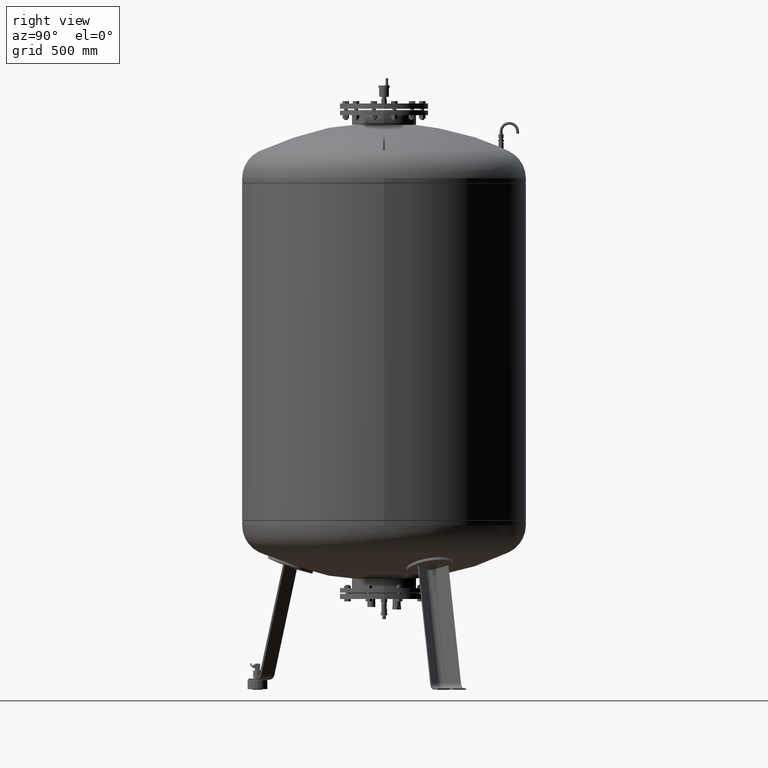
[diagram: clean part render]
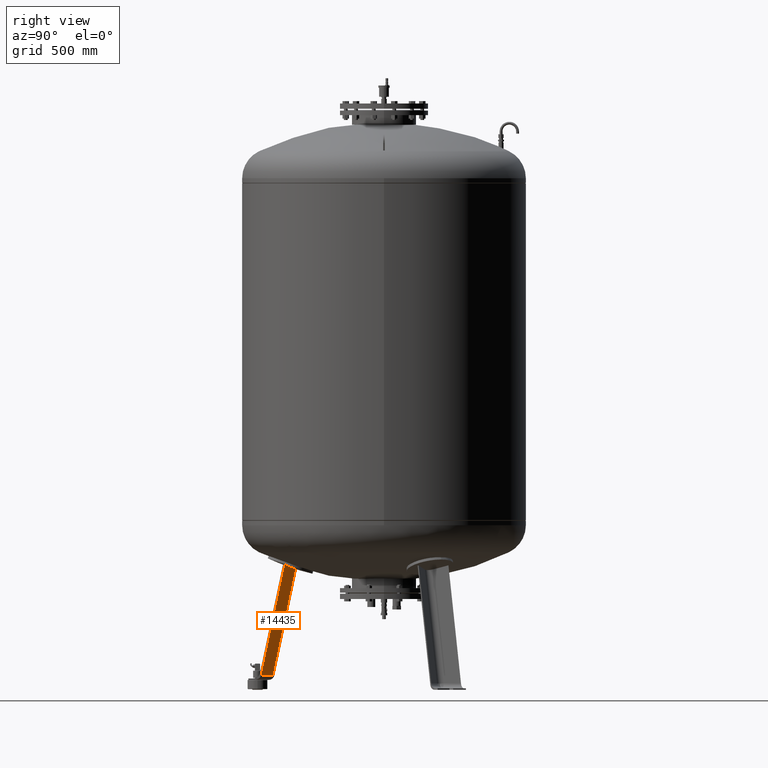
[diagram: same view with one face highlighted and labeled with its STEP entity id]
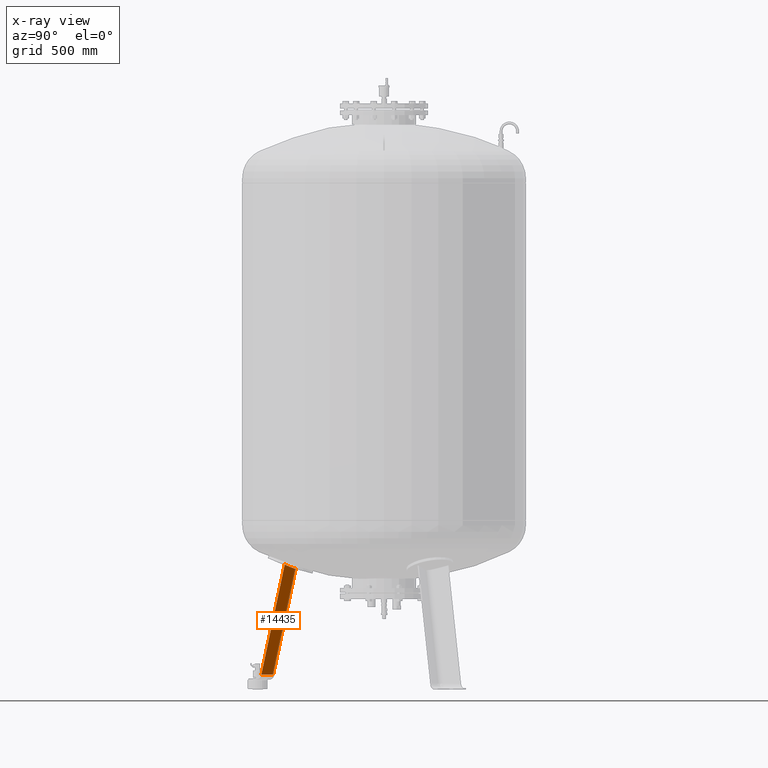
[diagram: x-ray of the same camera — body ghosted, the highlighted face saturated]
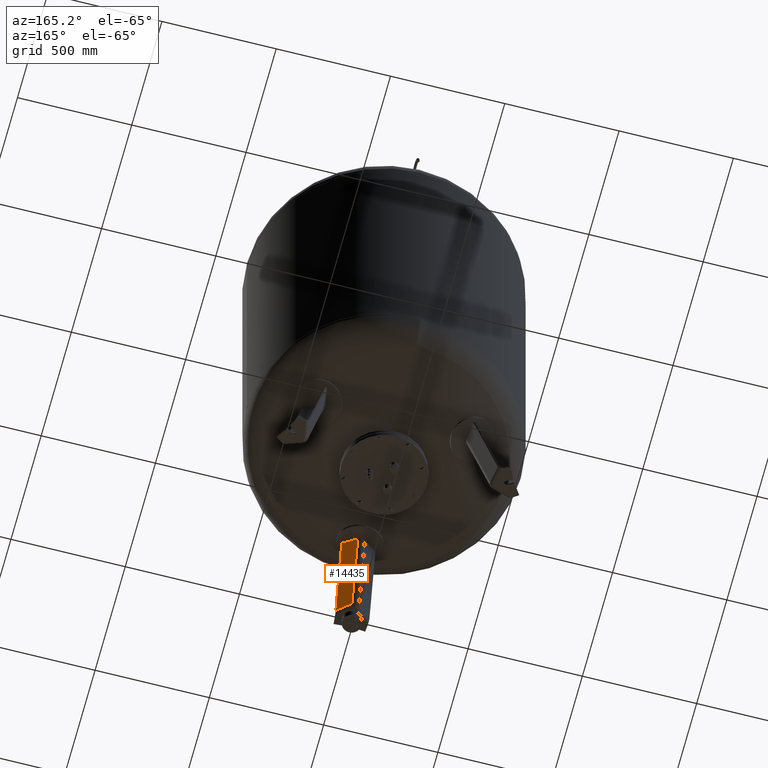
[diagram: same view with one face highlighted and labeled with its STEP entity id]
A machine part, right view. The second image highlights one B-rep face of the part: STEP entity #14435.
The next image is the same camera in x-ray: the body ghosted, the highlighted face saturated — about 0% of this face is hidden behind the body in this view.
A second angle (auxiliary view) of the same face is appended — the face is thin or edge-on in the first view.
In plain terms, the highlighted planar face has unit normal (0.6455, 0.7471, -0.1588).
Its self-contained STEP definition (entity closure, byte-faithful):
#13703=CARTESIAN_POINT('',(16.136450826554551,-469.470961811045530,63.029948423057277));
#13704=VERTEX_POINT('',#13703);
#13921=CARTESIAN_POINT('',(73.500000000000014,-519.029946471096990,63.029948423057284));
#13922=VERTEX_POINT('',#13921);
#13923=CARTESIAN_POINT('',(16.136450826554551,-469.470961811045530,63.029948423057277));
#13924=DIRECTION('',(0.756707249513243,-0.653753882232529,9.373075E-017));
#13925=VECTOR('',#13924,75.806792138366546);
#13926=LINE('',#13923,#13925);
#13927=EDGE_CURVE('',#13704,#13922,#13926,.T.);
#14237=CARTESIAN_POINT('',(16.136450826554654,-374.264158951643140,510.942739782579960));
#14238=VERTEX_POINT('',#14237);
#14239=CARTESIAN_POINT('',(73.500000000000114,-419.920615973365670,529.302688812935000));
#14240=VERTEX_POINT('',#14239);
#14241=CARTESIAN_POINT('',(-41.020088505273414,-118.861225454164180,1480.203780025492300));
#14242=DIRECTION('',(-0.645458033062182,-0.747104967402682,0.158802063077709));
#14243=DIRECTION('',(-5.092368E-017,-0.207911690817760,-0.978147600733805));
#14244=AXIS2_PLACEMENT_3D('',#14241,#14242,#14243);
#14245=CIRCLE('',#14244,1003.974348556914600);
#14246=EDGE_CURVE('',#14238,#14240,#14245,.T.);
#14401=CARTESIAN_POINT('',(16.136450826554654,-374.264158951643140,510.942739782579960));
#14402=DIRECTION('',(-2.249931E-016,-0.207911690817760,-0.978147600733805));
#14403=VECTOR('',#14402,457.919429566150200);
#14404=LINE('',#14401,#14403);
#14405=EDGE_CURVE('',#14238,#13704,#14404,.T.);
#14419=CARTESIAN_POINT('',(1.724896E-014,-472.440357983691800,-16.527282742766886));
#14420=DIRECTION('',(0.645458033062182,0.747104967402682,-0.158802063077709));
#14421=DIRECTION('',(-1.655020E-016,-0.207911690817760,-0.978147600733806));
#14422=AXIS2_PLACEMENT_3D('',#14419,#14420,#14421);
#14423=PLANE('',#14422);
#14424=CARTESIAN_POINT('',(73.500000000000014,-519.029946471096990,63.029948423057284));
#14425=DIRECTION('',(2.086809E-016,0.207911690817759,0.978147600733806));
#14426=VECTOR('',#14425,476.689550779534950);
#14427=LINE('',#14424,#14426);
#14428=EDGE_CURVE('',#13922,#14240,#14427,.T.);
#14429=ORIENTED_EDGE('',*,*,#14428,.F.);
#14430=ORIENTED_EDGE('',*,*,#13927,.F.);
#14431=ORIENTED_EDGE('',*,*,#14405,.F.);
#14432=ORIENTED_EDGE('',*,*,#14246,.T.);
#14433=EDGE_LOOP('',(#14429,#14430,#14431,#14432));
#14434=FACE_OUTER_BOUND('',#14433,.T.);
#14435=ADVANCED_FACE('',(#14434),#14423,.T.);